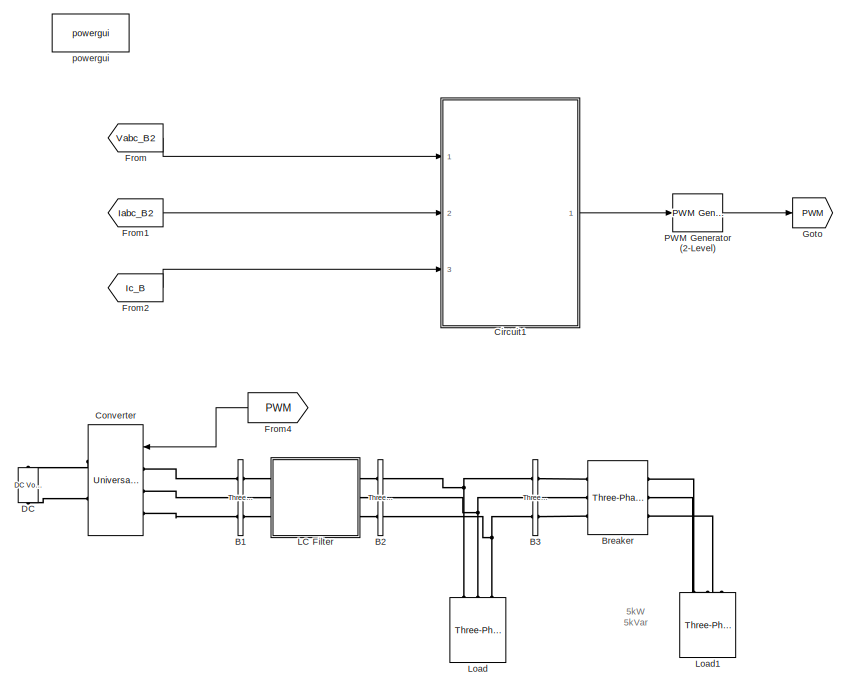
[diagram: root canvas - part 1/2, left side, full height]
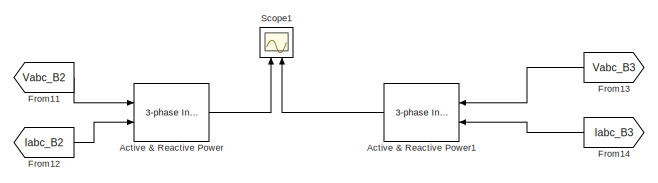
[diagram: root canvas - part 2/2, bottom right region]
MODEL slx_2f53aba1ddd4
KIND model
CONFIG AbsTol = auto
CONFIG FixedStep = auto
CONFIG MaxStep = auto
CONFIG MinStep = auto
CONFIG RelTol = 1e-3
CONFIG SampleTimeConstraint = Unconstrained
CONFIG Solver = VariableStepAuto
CONFIG SolverMode = Auto
CONFIG SolverName = VariableStepAuto
CONFIG StartTime = 0.0
CONFIG StopTime = 1.0
BLOCK [Reference] Active & Reactive Power  REF=powerlib_extras/Measurements/3-phase 
Instantaneous 
Active & Reactive Power
  Ports = [2, 1]
  SourceBlock = powerlib_extras/Measurements/3-phase \nInstantaneous \nActive & Reactive Power
  SourceType = 3-phase instantaneous active and reactive power
BLOCK [Reference] Active & Reactive Power1  REF=powerlib_extras/Measurements/3-phase 
Instantaneous 
Active & Reactive Power
  Ports = [2, 1]
  SourceBlock = powerlib_extras/Measurements/3-phase \nInstantaneous \nActive & Reactive Power
  SourceType = 3-phase instantaneous active and reactive power
BLOCK [Reference] B1  REF=powerlib/Measurements/Three-Phase
V-I Measurement
  Ports = [0, 0, 0, 0, 0, 3, 3]
  SourceBlock = powerlib/Measurements/Three-Phase\nV-I Measurement
  SourceType = Three-Phase VI Measurement
BLOCK [Reference] B2  REF=powerlib/Measurements/Three-Phase
V-I Measurement
  Ports = [0, 0, 0, 0, 0, 3, 3]
  SourceBlock = powerlib/Measurements/Three-Phase\nV-I Measurement
  SourceType = Three-Phase VI Measurement
BLOCK [Reference] B3  REF=powerlib/Measurements/Three-Phase
V-I Measurement
  Ports = [0, 0, 0, 0, 0, 3, 3]
  SourceBlock = powerlib/Measurements/Three-Phase\nV-I Measurement
  SourceType = Three-Phase VI Measurement
BLOCK [Reference] Breaker  REF=powerlib/Elements/Three-Phase Breaker
  Ports = [0, 0, 0, 0, 0, 3, 3]
  SourceBlock = powerlib/Elements/Three-Phase Breaker
  SourceType = Three-Phase Breaker
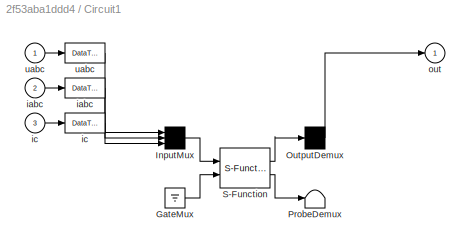
BLOCK [SubSystem] Circuit1
  CopyFcn = plecs('sl', 203);
  DeleteFcn = plecs('sl', 205);
  DestroyFcn = plecs('sl', 207);
  ErrorFcn = plerrorfcn
  InitFcn = plecs('sl', 214);
  LoadFcn = plecs('sl', 200);
  NameChangeFcn = plecs('sl', 210);
  OpenFcn = plecs('sl', 202);
  Ports = [3, 1]
  PostSaveFcn = plecs('sl', 201);
  PreCopyFcn = plecs('sl', 216);
  PreSaveFcn = plecs('sl', 211);
  RequestExecContextInheritance = off
  StartFcn = plecs('sl', 208);
  StopFcn = plecs('sl', 209);
  UndoDeleteFcn = plecs('sl', 206);
  Variant = off
BLOCK [Ground] Circuit1/ GateMux 
BLOCK [Mux] Circuit1/ InputMux 
  Inputs = [ 3 3 3 ]
  Ports = [3, 1]
BLOCK [Demux] Circuit1/ OutputDemux 
  Outputs = [ 3 ]
  Ports = [1, 1]
BLOCK [Terminator] Circuit1/ ProbeDemux 
BLOCK [S-Function] Circuit1/ S-Function 
  EnableBusSupport = off
  FunctionName = plecs
  Ports = [2, 2]
  SFunctionDeploymentMode = off
BLOCK [DataTypeConversion] Circuit1/ iabc 
BLOCK [DataTypeConversion] Circuit1/ ic 
BLOCK [DataTypeConversion] Circuit1/ uabc 
BLOCK [Inport] Circuit1/iabc
  IconDisplay = Port number
  Port = 2
  PortDimensions = 3
BLOCK [Inport] Circuit1/ic
  IconDisplay = Port number
  Port = 3
  PortDimensions = 3
BLOCK [Outport] Circuit1/out
  IconDisplay = Port number
  PortDimensions = 3
BLOCK [Inport] Circuit1/uabc
  IconDisplay = Port number
  PortDimensions = 3
BLOCK [Reference] Converter  REF=powerlib/Power
Electronics/Universal Bridge
  Ports = [1, 0, 0, 0, 0, 3, 2]
  SourceBlock = powerlib/Power\nElectronics/Universal Bridge
  SourceType = Universal Bridge
BLOCK [Reference] DC  REF=powerlib/Electrical
Sources/DC Voltage Source
  Ports = [0, 0, 0, 0, 0, 1, 1]
  SourceBlock = powerlib/Electrical\nSources/DC Voltage Source
  SourceType = DC Voltage Source
BLOCK [From] From
  GotoTag = Vabc_B2
  TagVisibility = global
BLOCK [From] From1
  GotoTag = Iabc_B2
  TagVisibility = global
BLOCK [From] From11
  GotoTag = Vabc_B2
  TagVisibility = global
BLOCK [From] From12
  GotoTag = Iabc_B2
  TagVisibility = global
BLOCK [From] From13
  GotoTag = Vabc_B3
  TagVisibility = global
BLOCK [From] From14
  GotoTag = Iabc_B3
  TagVisibility = global
BLOCK [From] From2
  GotoTag = Ic_B
  TagVisibility = global
BLOCK [From] From4
  GotoTag = PWM
BLOCK [Goto] Goto
  GotoTag = PWM
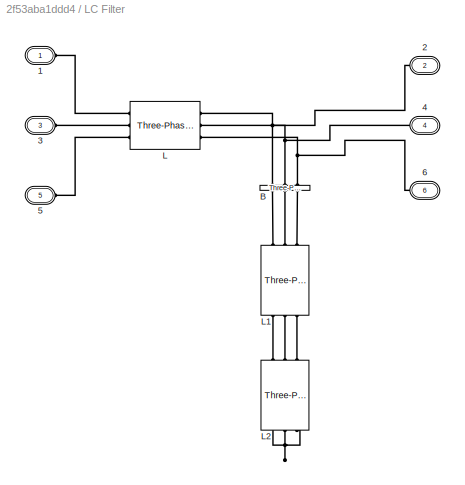
BLOCK [SubSystem] LC Filter
  Ports = [0, 0, 0, 0, 0, 3, 3]
  RequestExecContextInheritance = off
  Variant = off
BLOCK [PMIOPort] LC Filter/1
  Port = 1
  Side = Left
  Tag = PMCPort
BLOCK [PMIOPort] LC Filter/2
  Port = 2
  Side = Right
  Tag = PMCPort
BLOCK [PMIOPort] LC Filter/3
  Port = 3
  Side = Left
  Tag = PMCPort
BLOCK [PMIOPort] LC Filter/4
  Port = 4
  Side = Right
  Tag = PMCPort
BLOCK [PMIOPort] LC Filter/5
  Port = 5
  Side = Left
  Tag = PMCPort
BLOCK [PMIOPort] LC Filter/6
  Port = 6
  Side = Right
  Tag = PMCPort
BLOCK [Reference] LC Filter/B  REF=powerlib/Measurements/Three-Phase
V-I Measurement
  Ports = [0, 0, 0, 0, 0, 3, 3]
  SourceBlock = powerlib/Measurements/Three-Phase\nV-I Measurement
  SourceType = Three-Phase VI Measurement
BLOCK [Reference] LC Filter/L  REF=powerlib/Elements/Three-Phase
Parallel RLC Branch
  AttributesFormatString = \n
  Ports = [0, 0, 0, 0, 0, 3, 3]
  SourceBlock = powerlib/Elements/Three-Phase\nParallel RLC Branch
  SourceType = Three-Phase Parallel RLC Branch
BLOCK [Reference] LC Filter/L1  REF=powerlib/Elements/Three-Phase
Parallel RLC Branch
  AttributesFormatString = \n
  Ports = [0, 0, 0, 0, 0, 3, 3]
  SourceBlock = powerlib/Elements/Three-Phase\nParallel RLC Branch
  SourceType = Three-Phase Parallel RLC Branch
BLOCK [Reference] LC Filter/L2  REF=powerlib/Elements/Three-Phase
Parallel RLC Branch
  AttributesFormatString = \n
  Ports = [0, 0, 0, 0, 0, 3, 3]
  SourceBlock = powerlib/Elements/Three-Phase\nParallel RLC Branch
  SourceType = Three-Phase Parallel RLC Branch
BLOCK [Reference] Load  REF=powerlib/Elements/Three-Phase
Series RLC Load
  AttributesFormatString = \n
  Ports = [0, 0, 0, 0, 0, 3]
  SourceBlock = powerlib/Elements/Three-Phase\nSeries RLC Load
  SourceType = Three-Phase Series RLC Load
BLOCK [Reference] Load1  REF=powerlib/Elements/Three-Phase
Series RLC Load
  AttributesFormatString = \n
  Ports = [0, 0, 0, 0, 0, 3]
  SourceBlock = powerlib/Elements/Three-Phase\nSeries RLC Load
  SourceType = Three-Phase Series RLC Load
BLOCK [Reference] PWM Generator (2-Level)  REF=powerlib_meascontrol/Pulse & Signal
Generators/PWM Generator
(2-Level)
  Ports = [1, 1]
  SourceBlock = powerlib_meascontrol/Pulse & Signal\nGenerators/PWM Generator\n(2-Level)
  SourceType = PWM Generator (2-Level)
BLOCK [Scope] Scope1
  NumInputPorts = 2
  Ports = [2]
  ScopeSpecificationString = Simulink.scopes.TimeScopeBlockCfg('CurrentConfiguration', extmgr.ConfigurationSet(extmgr.Configuration('Core','General UI',true),extmgr.Configuration('Core','Source UI',true),extmgr.Configuration('Sources','WiredSimulink',true,'DataLoggingSaveFormat','StructureWithTime','DataLoggingDecimation','1','DataLoggingDecimateData',true),extmgr.Configuration('Visuals','Time Domain',true,'SerializedDisplays...<+2414ch>
BLOCK [Reference] powergui  REF=powerlib/powergui
  Ports = []
  Priority = 1
  SourceBlock = powerlib/powergui
  SourceType = PSB option menu block
  UserDataPersistent = on
ANNOTATION (root): 5kW 5kVar
LINE Active & Reactive Power1:1 -> Scope1:2
LINE Active & Reactive Power:1 -> Scope1:1
LINE Circuit1:1 -> PWM Generator (2-Level):1
LINE From11:1 -> Active & Reactive Power:1
LINE From12:1 -> Active & Reactive Power:2
LINE From13:1 -> Active & Reactive Power1:1
LINE From14:1 -> Active & Reactive Power1:2
LINE From1:1 -> Circuit1:2
LINE From2:1 -> Circuit1:3
LINE From4:1 -> Converter:1
LINE From:1 -> Circuit1:1
LINE PWM Generator (2-Level):1 -> Goto:1
PLINE B1:LConn1 -- Converter:LConn1
PLINE B1:LConn2 -- Converter:LConn2
PLINE B1:LConn3 -- Converter:LConn3
PLINE B1:RConn1 -- LC Filter:LConn1
PLINE B1:RConn2 -- LC Filter:LConn2
PLINE B1:RConn3 -- LC Filter:LConn3
PLINE B2:LConn1 -- LC Filter:RConn1
PLINE B2:LConn2 -- LC Filter:RConn2
PLINE B2:LConn3 -- LC Filter:RConn3
PNET net1: B2:RConn1 -- B3:LConn1 -- Load:LConn1
PNET net2: B2:RConn2 -- B3:LConn2 -- Load:LConn2
PNET net3: B2:RConn3 -- B3:LConn3 -- Load:LConn3
PLINE B3:RConn1 -- Breaker:LConn1
PLINE B3:RConn2 -- Breaker:LConn2
PLINE B3:RConn3 -- Breaker:LConn3
PLINE Breaker:RConn1 -- Load1:LConn1
PLINE Breaker:RConn2 -- Load1:LConn2
PLINE Breaker:RConn3 -- Load1:LConn3
PLINE Converter:RConn1 -- DC:RConn1
PLINE Converter:RConn2 -- DC:LConn1
PLINE LC Filter/1:RConn1 -- LC Filter/L:LConn1
PNET net4: LC Filter/2:RConn1 -- LC Filter/B:LConn1 -- LC Filter/L:RConn1
PLINE LC Filter/3:RConn1 -- LC Filter/L:LConn2
PNET net5: LC Filter/4:RConn1 -- LC Filter/B:LConn2 -- LC Filter/L:RConn2
PLINE LC Filter/5:RConn1 -- LC Filter/L:LConn3
PNET net6: LC Filter/6:RConn1 -- LC Filter/B:LConn3 -- LC Filter/L:RConn3
PLINE LC Filter/B:RConn1 -- LC Filter/L1:LConn1
PLINE LC Filter/B:RConn2 -- LC Filter/L1:LConn2
PLINE LC Filter/B:RConn3 -- LC Filter/L1:LConn3
PLINE LC Filter/L1:RConn1 -- LC Filter/L2:LConn1
PLINE LC Filter/L1:RConn2 -- LC Filter/L2:LConn2
PLINE LC Filter/L1:RConn3 -- LC Filter/L2:LConn3
PNET net7: LC Filter/L2:RConn1 -- LC Filter/L2:RConn2 -- LC Filter/L2:RConn3
note: PNET lines group multi-terminal physical nets as a canonical sorted terminal list (undirected conserving connections); 2-terminal nets keep the pairwise PLINE form
